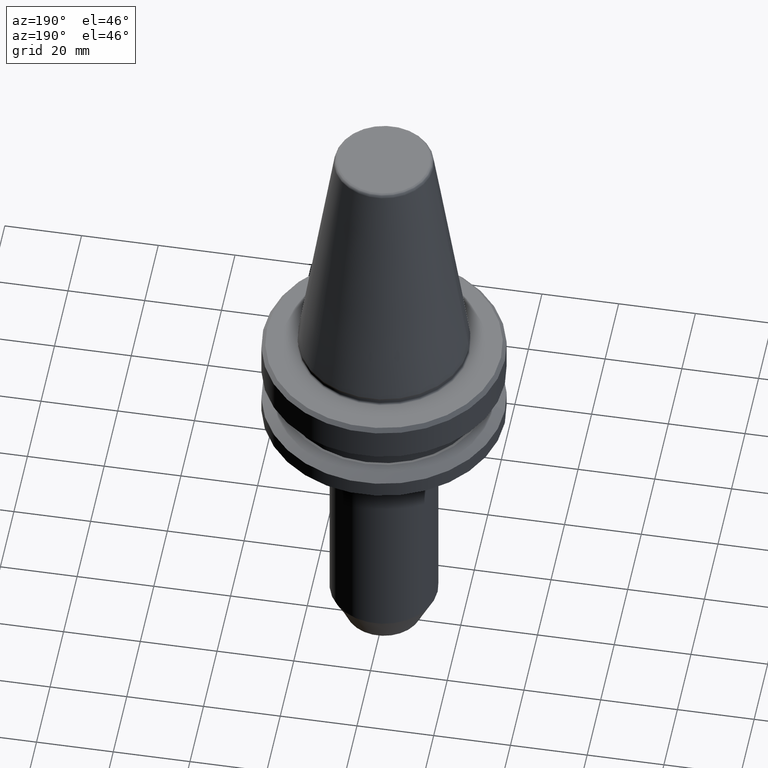
[diagram: clean part render]
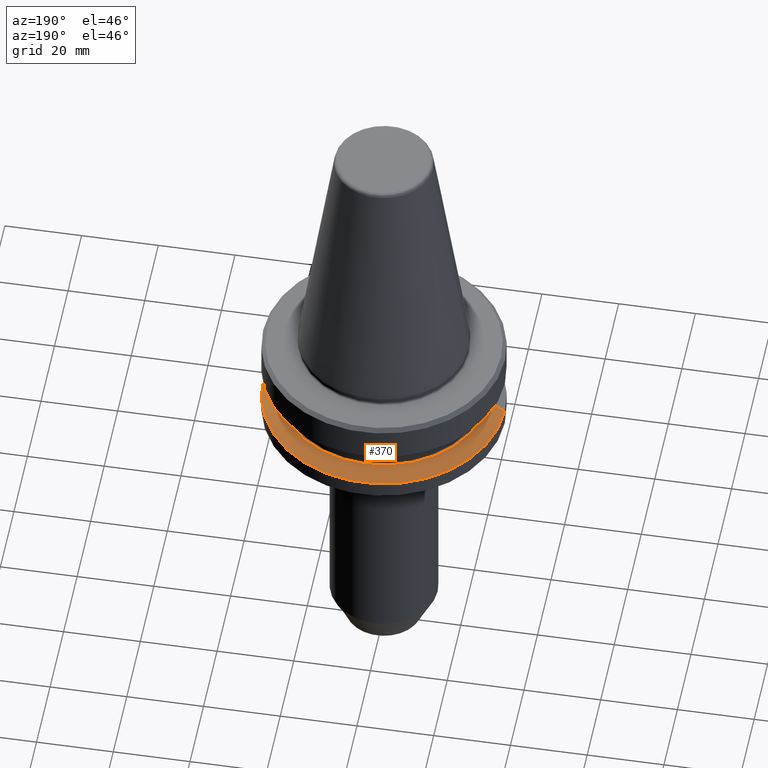
[diagram: same view with one face highlighted and labeled with its STEP entity id]
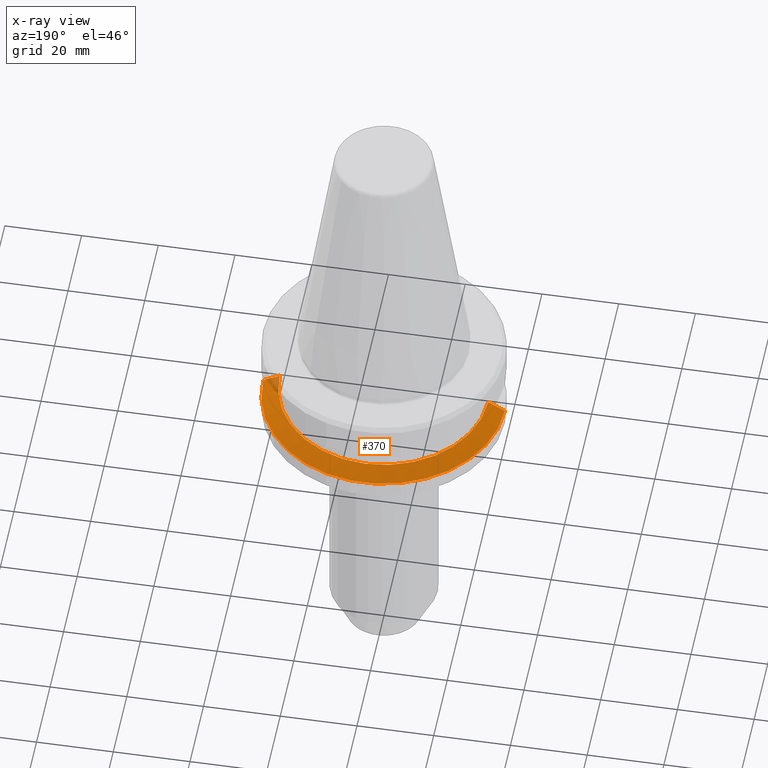
[diagram: x-ray of the same camera — body ghosted, the highlighted face saturated]
A machine part, auxiliary view. The second image highlights one B-rep face of the part: STEP entity #370.
The next image is the same camera in x-ray: the body ghosted, the highlighted face saturated — about 2% of this face is hidden behind the body in this view.
In plain terms, the highlighted conical surface has half-angle 60 deg.
Its self-contained STEP definition (entity closure, byte-faithful):
#2 = EDGE_CURVE ( 'NONE', #894, #469, #335, .T. ) ;
#19 = CARTESIAN_POINT ( 'NONE',  ( -31.49999999999986100, 3.857637417314145300E-015, -21.60014200631687900 ) ) ;
#68 = CARTESIAN_POINT ( 'NONE',  ( 31.49999999999986100, 3.857637417314145300E-015, -21.60014200631687900 ) ) ;
#71 = DIRECTION ( 'NONE',  ( -1.000000000000000000, 0.0000000000000000000, 0.0000000000000000000 ) ) ;
#86 = DIRECTION ( 'NONE',  ( 0.8660254037844377100, 1.060575238724905700E-016, -0.5000000000000017800 ) ) ;
#120 = EDGE_LOOP ( 'NONE', ( #249, #965, #514, #864 ) ) ;
#122 = VERTEX_POINT ( 'NONE', #876 ) ;
#140 = FACE_OUTER_BOUND ( 'NONE', #120, .T. ) ;
#161 = EDGE_CURVE ( 'NONE', #469, #418, #848, .T. ) ;
#228 = CIRCLE ( 'NONE', #395, 27.16962701892206100 ) ;
#249 = ORIENTED_EDGE ( 'NONE', *, *, #734, .F. ) ;
#255 = CARTESIAN_POINT ( 'NONE',  ( 0.0000000000000000000, 0.0000000000000000000, -21.60014200631687900 ) ) ;
#271 = CARTESIAN_POINT ( 'NONE',  ( -31.49999999999986100, 0.0000000000000000000, -21.60014200631687900 ) ) ;
#313 = CARTESIAN_POINT ( 'NONE',  ( 27.16962701892206100, 3.592478546794589700E-015, -19.10000000000011500 ) ) ;
#335 = LINE ( 'NONE', #68, #503 ) ;
#361 = DIRECTION ( 'NONE',  ( 1.000000000000000000, 0.0000000000000000000, 0.0000000000000000000 ) ) ;
#370 = ADVANCED_FACE ( 'NONE', ( #140 ), #909, .T. ) ;
#386 = EDGE_CURVE ( 'NONE', #122, #418, #929, .T. ) ;
#395 = AXIS2_PLACEMENT_3D ( 'NONE', #482, #480, #361 ) ;
#418 = VERTEX_POINT ( 'NONE', #19 ) ;
#469 = VERTEX_POINT ( 'NONE', #966 ) ;
#480 = DIRECTION ( 'NONE',  ( -0.0000000000000000000, -0.0000000000000000000, 1.000000000000000000 ) ) ;
#482 = CARTESIAN_POINT ( 'NONE',  ( 0.0000000000000000000, 0.0000000000000000000, -19.10000000000011500 ) ) ;
#503 = VECTOR ( 'NONE', #86, 999.9999999999998900 ) ;
#510 = DIRECTION ( 'NONE',  ( 0.0000000000000000000, 0.0000000000000000000, -1.000000000000000000 ) ) ;
#514 = ORIENTED_EDGE ( 'NONE', *, *, #161, .T. ) ;
#596 = AXIS2_PLACEMENT_3D ( 'NONE', #839, #989, #670 ) ;
#670 = DIRECTION ( 'NONE',  ( 1.000000000000000000, 0.0000000000000000000, 0.0000000000000000000 ) ) ;
#734 = EDGE_CURVE ( 'NONE', #894, #122, #228, .T. ) ;
#773 = AXIS2_PLACEMENT_3D ( 'NONE', #255, #510, #71 ) ;
#839 = CARTESIAN_POINT ( 'NONE',  ( 0.0000000000000000000, 0.0000000000000000000, -21.60014200631687900 ) ) ;
#848 = CIRCLE ( 'NONE', #596, 31.49999999999986100 ) ;
#864 = ORIENTED_EDGE ( 'NONE', *, *, #386, .F. ) ;
#874 = DIRECTION ( 'NONE',  ( -0.8660254037844377100, 0.0000000000000000000, -0.5000000000000017800 ) ) ;
#876 = CARTESIAN_POINT ( 'NONE',  ( -27.16962701892206100, 0.0000000000000000000, -19.10000000000011500 ) ) ;
#894 = VERTEX_POINT ( 'NONE', #313 ) ;
#909 = CONICAL_SURFACE ( 'NONE', #773, 31.49999999999986100, 1.047197551196595600 ) ;
#917 = VECTOR ( 'NONE', #874, 999.9999999999998900 ) ;
#929 = LINE ( 'NONE', #271, #917 ) ;
#965 = ORIENTED_EDGE ( 'NONE', *, *, #2, .T. ) ;
#966 = CARTESIAN_POINT ( 'NONE',  ( 31.49999999999986100, 0.0000000000000000000, -21.60014200631687900 ) ) ;
#989 = DIRECTION ( 'NONE',  ( -0.0000000000000000000, -0.0000000000000000000, 1.000000000000000000 ) ) ;